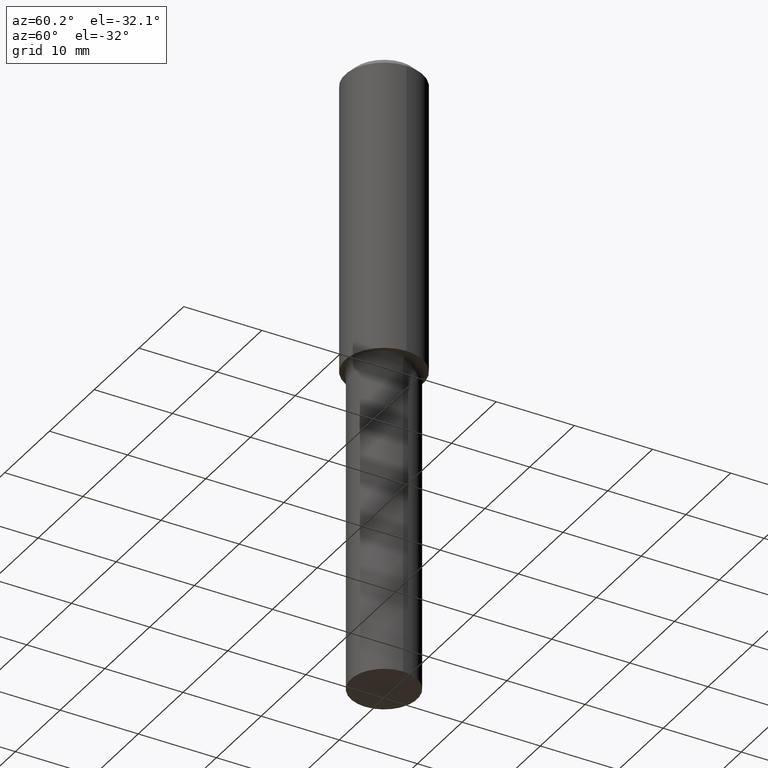
[diagram: clean part render]
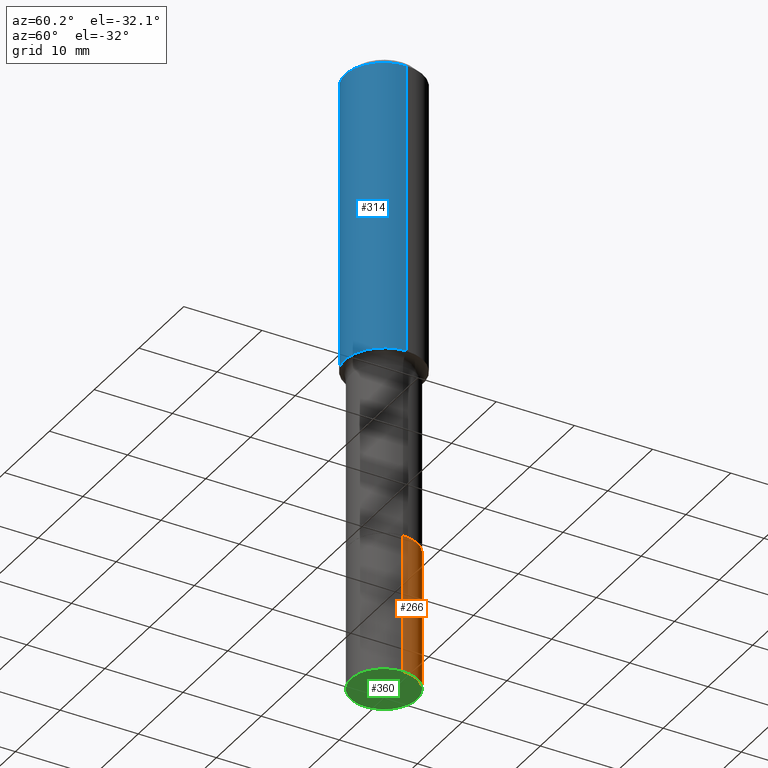
[diagram: same view with three faces highlighted in distinct colors, each labeled with its STEP entity id]
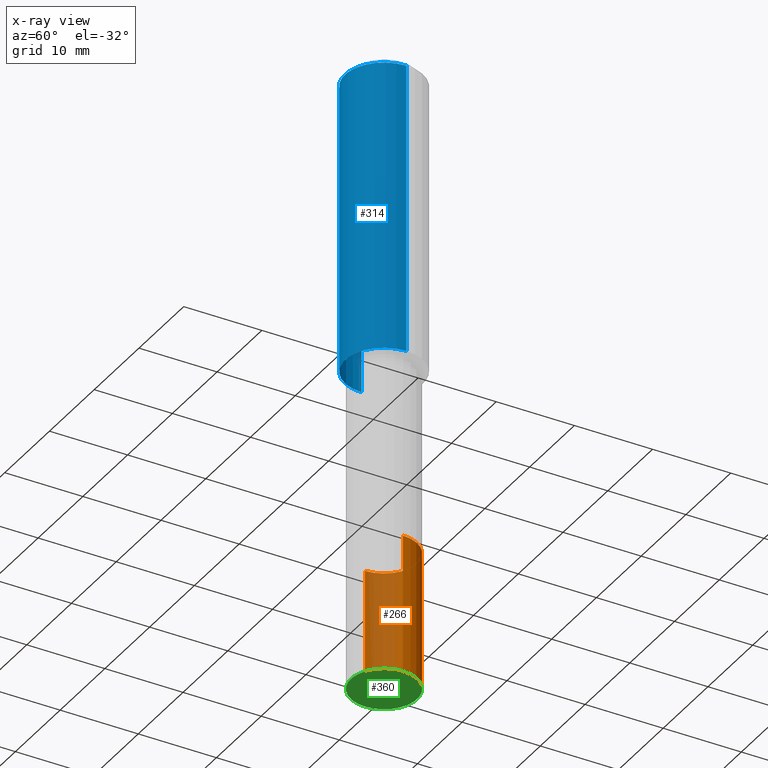
[diagram: x-ray of the same camera — body ghosted, the three highlighted faces saturated]
A machine part, auxiliary view with three faces highlighted in distinct colors.
The next image is the same camera in x-ray (body ghosted, the three faces saturated) — at least one of them is partly hidden behind the body in this view.
Their STEP definitions:

[orange] entity #266 — the highlighted cylindrical surface (partial cylindrical patch) has radius 4.2494 mm, axis along (-0, 0, 1).
#16 = AXIS2_PLACEMENT_3D ( 'NONE', #186, #55, #112 ) ;
#34 = ORIENTED_EDGE ( 'NONE', *, *, #212, .F. ) ;
#46 = ORIENTED_EDGE ( 'NONE', *, *, #477, .T. ) ;
#51 = CIRCLE ( 'NONE', #16, 0.1673000000000002263 ) ;
#54 = DIRECTION ( 'NONE',  ( -2.445468806185136597E-29, 3.491481338843145583E-15, 1.000000000000000000 ) ) ;
#55 = DIRECTION ( 'NONE',  ( -2.445468806185136597E-29, 3.491481338843145583E-15, 1.000000000000000000 ) ) ;
#66 = VECTOR ( 'NONE', #274, 39.37007874015748143 ) ;
#81 = ORIENTED_EDGE ( 'NONE', *, *, #424, .T. ) ;
#99 = CARTESIAN_POINT ( 'NONE',  ( 0.1673000000000001153, -9.717490862268239274E-15, -2.448600000000000332 ) ) ;
#112 = DIRECTION ( 'NONE',  ( 1.000000000000000000, -6.982962677686271444E-15, 0.000000000000000000 ) ) ;
#126 = CYLINDRICAL_SURFACE ( 'NONE', #488, 0.1673000000000001153 ) ;
#139 = AXIS2_PLACEMENT_3D ( 'NONE', #406, #54, #375 ) ;
#140 = VERTEX_POINT ( 'NONE', #512 ) ;
#167 = VERTEX_POINT ( 'NONE', #487 ) ;
#170 = VERTEX_POINT ( 'NONE', #264 ) ;
#177 = CARTESIAN_POINT ( 'NONE',  ( 5.987974918824925266E-29, -8.549241206291326487E-15, -2.448600000000000332 ) ) ;
#186 = CARTESIAN_POINT ( 'NONE',  ( 7.702248551960706711E-29, -1.099676962482037231E-14, -3.149600000000000399 ) ) ;
#196 = LINE ( 'NONE', #422, #224 ) ;
#211 = DIRECTION ( 'NONE',  ( -2.445468806185136597E-29, 3.491481338843145583E-15, 1.000000000000000000 ) ) ;
#212 = EDGE_CURVE ( 'NONE', #167, #307, #367, .T. ) ;
#220 = FACE_OUTER_BOUND ( 'NONE', #432, .T. ) ;
#224 = VECTOR ( 'NONE', #347, 39.37007874015748143 ) ;
#264 = CARTESIAN_POINT ( 'NONE',  ( -0.1673000000000002263, -8.584267418629199390E-15, -3.149600000000000399 ) ) ;
#266 = ADVANCED_FACE ( 'NONE', ( #220 ), #126, .T. ) ;
#274 = DIRECTION ( 'NONE',  ( -2.445468806185136877E-29, 3.491481338843145188E-15, 1.000000000000000000 ) ) ;
#307 = VERTEX_POINT ( 'NONE', #408 ) ;
#347 = DIRECTION ( 'NONE',  ( -2.445468806185136877E-29, 3.491481338843145188E-15, 1.000000000000000000 ) ) ;
#367 = CIRCLE ( 'NONE', #139, 0.1673000000000000043 ) ;
#375 = DIRECTION ( 'NONE',  ( 1.000000000000000000, -6.982962677686269866E-15, 0.000000000000000000 ) ) ;
#385 = EDGE_CURVE ( 'NONE', #140, #167, #425, .T. ) ;
#406 = CARTESIAN_POINT ( 'NONE',  ( 5.987974918824925266E-29, -8.549241206291326487E-15, -2.448600000000000332 ) ) ;
#408 = CARTESIAN_POINT ( 'NONE',  ( -0.1673000000000000043, -8.584267418629200968E-15, -2.448600000000000332 ) ) ;
#422 = CARTESIAN_POINT ( 'NONE',  ( -0.1673000000000001153, -7.360503209364678846E-15, -2.448600000000000332 ) ) ;
#424 = EDGE_CURVE ( 'NONE', #170, #307, #196, .T. ) ;
#425 = LINE ( 'NONE', #99, #66 ) ;
#432 = EDGE_LOOP ( 'NONE', ( #46, #81, #34, #462 ) ) ;
#462 = ORIENTED_EDGE ( 'NONE', *, *, #385, .F. ) ;
#477 = EDGE_CURVE ( 'NONE', #140, #170, #51, .T. ) ;
#487 = CARTESIAN_POINT ( 'NONE',  ( 0.1673000000000000043, -9.717490862268239274E-15, -2.448600000000000332 ) ) ;
#488 = AXIS2_PLACEMENT_3D ( 'NONE', #177, #211, #493 ) ;
#493 = DIRECTION ( 'NONE',  ( 1.000000000000000000, -6.982962677686265133E-15, 0.000000000000000000 ) ) ;
#512 = CARTESIAN_POINT ( 'NONE',  ( 0.1673000000000002263, -1.216501928079728667E-14, -3.149600000000000399 ) ) ;

[blue] entity #314 — the highlighted cylindrical surface (partial cylindrical patch) has radius 5 mm, axis along (-0, 0, 1).
#7 = VERTEX_POINT ( 'NONE', #44 ) ;
#17 = CYLINDRICAL_SURFACE ( 'NONE', #430, 0.1968500000000001082 ) ;
#23 = EDGE_LOOP ( 'NONE', ( #151, #237, #504, #218 ) ) ;
#24 = AXIS2_PLACEMENT_3D ( 'NONE', #334, #295, #489 ) ;
#44 = CARTESIAN_POINT ( 'NONE',  ( 0.1968500000000000250, -1.512055823412797189E-15, -0.03937000000000025896 ) ) ;
#93 = CARTESIAN_POINT ( 'NONE',  ( 0.1968500000000001082, -1.374596203102542397E-15, 9.598753983154305062E-30 ) ) ;
#94 = DIRECTION ( 'NONE',  ( 1.000000000000000000, -6.982962677686265922E-15, 0.000000000000000000 ) ) ;
#101 = FACE_OUTER_BOUND ( 'NONE', #23, .T. ) ;
#146 = DIRECTION ( 'NONE',  ( -2.445468806185136597E-29, 3.491481338843145583E-15, 1.000000000000000000 ) ) ;
#151 = ORIENTED_EDGE ( 'NONE', *, *, #494, .F. ) ;
#157 = LINE ( 'NONE', #440, #326 ) ;
#169 = EDGE_CURVE ( 'NONE', #384, #230, #261, .T. ) ;
#183 = CIRCLE ( 'NONE', #438, 0.1968500000000000250 ) ;
#199 = DIRECTION ( 'NONE',  ( -2.445468806185136877E-29, 3.491481338843145188E-15, 1.000000000000000000 ) ) ;
#206 = EDGE_CURVE ( 'NONE', #230, #7, #296, .T. ) ;
#218 = ORIENTED_EDGE ( 'NONE', *, *, #442, .F. ) ;
#225 = DIRECTION ( 'NONE',  ( -2.445468806185136597E-29, 3.491481338843145583E-15, 1.000000000000000000 ) ) ;
#230 = VERTEX_POINT ( 'NONE', #366 ) ;
#237 = ORIENTED_EDGE ( 'NONE', *, *, #169, .T. ) ;
#261 = CIRCLE ( 'NONE', #24, 0.1968500000000001915 ) ;
#295 = DIRECTION ( 'NONE',  ( -2.445468806185136597E-29, 3.491481338843145583E-15, 1.000000000000000000 ) ) ;
#296 = LINE ( 'NONE', #93, #303 ) ;
#303 = VECTOR ( 'NONE', #457, 39.37007874015748143 ) ;
#314 = ADVANCED_FACE ( 'NONE', ( #101 ), #17, .T. ) ;
#326 = VECTOR ( 'NONE', #199, 39.37007874015748143 ) ;
#334 = CARTESIAN_POINT ( 'NONE',  ( 3.696078292805706641E-29, -5.277020239880085119E-15, -1.511398666569575111 ) ) ;
#338 = DIRECTION ( 'NONE',  ( 1.000000000000000000, -6.982962677686266711E-15, 4.876176775795935793E-29 ) ) ;
#343 = CARTESIAN_POINT ( 'NONE',  ( 0.000000000000000000, 0.000000000000000000, 0.000000000000000000 ) ) ;
#366 = CARTESIAN_POINT ( 'NONE',  ( 0.1968500000000001915, -6.651616442982627516E-15, -1.511398666569575111 ) ) ;
#384 = VERTEX_POINT ( 'NONE', #470 ) ;
#430 = AXIS2_PLACEMENT_3D ( 'NONE', #343, #225, #338 ) ;
#438 = AXIS2_PLACEMENT_3D ( 'NONE', #501, #146, #94 ) ;
#440 = CARTESIAN_POINT ( 'NONE',  ( -0.1968500000000001082, 1.398703375343757985E-15, -9.682923725166787881E-30 ) ) ;
#442 = EDGE_CURVE ( 'NONE', #500, #7, #183, .T. ) ;
#457 = DIRECTION ( 'NONE',  ( -2.445468806185136877E-29, 3.491481338843145188E-15, 1.000000000000000000 ) ) ;
#470 = CARTESIAN_POINT ( 'NONE',  ( -0.1968500000000001915, -3.878316864536326542E-15, -1.511398666569575111 ) ) ;
#489 = DIRECTION ( 'NONE',  ( 1.000000000000000000, -6.982962677686266711E-15, 0.000000000000000000 ) ) ;
#494 = EDGE_CURVE ( 'NONE', #384, #500, #157, .T. ) ;
#500 = VERTEX_POINT ( 'NONE', #511 ) ;
#501 = CARTESIAN_POINT ( 'NONE',  ( 9.627810689950945397E-31, -1.374596203102555315E-16, -0.03937000000000025896 ) ) ;
#504 = ORIENTED_EDGE ( 'NONE', *, *, #206, .T. ) ;
#511 = CARTESIAN_POINT ( 'NONE',  ( -0.1968500000000000250, -1.308536554751411971E-15, -0.03937000000000025896 ) ) ;

[green] entity #360 — the highlighted planar face has unit normal (0, -0, -1).
#16 = AXIS2_PLACEMENT_3D ( 'NONE', #186, #55, #112 ) ;
#25 = FACE_OUTER_BOUND ( 'NONE', #117, .T. ) ;
#31 = DIRECTION ( 'NONE',  ( 1.000000000000000000, -6.982962677686271444E-15, 0.000000000000000000 ) ) ;
#36 = AXIS2_PLACEMENT_3D ( 'NONE', #188, #497, #229 ) ;
#51 = CIRCLE ( 'NONE', #16, 0.1673000000000002263 ) ;
#55 = DIRECTION ( 'NONE',  ( -2.445468806185136597E-29, 3.491481338843145583E-15, 1.000000000000000000 ) ) ;
#112 = DIRECTION ( 'NONE',  ( 1.000000000000000000, -6.982962677686271444E-15, 0.000000000000000000 ) ) ;
#117 = EDGE_LOOP ( 'NONE', ( #392, #389 ) ) ;
#140 = VERTEX_POINT ( 'NONE', #512 ) ;
#165 = CIRCLE ( 'NONE', #503, 0.1673000000000002263 ) ;
#170 = VERTEX_POINT ( 'NONE', #264 ) ;
#186 = CARTESIAN_POINT ( 'NONE',  ( 7.702248551960706711E-29, -1.099676962482037231E-14, -3.149600000000000399 ) ) ;
#188 = CARTESIAN_POINT ( 'NONE',  ( 7.702248551960706711E-29, -1.099676962482037231E-14, -3.149600000000000399 ) ) ;
#193 = PLANE ( 'NONE',  #36 ) ;
#229 = DIRECTION ( 'NONE',  ( -1.000000000000000000, 6.982962677686265922E-15, -4.876176775795935793E-29 ) ) ;
#247 = CARTESIAN_POINT ( 'NONE',  ( 7.702248551960706711E-29, -1.099676962482037231E-14, -3.149600000000000399 ) ) ;
#264 = CARTESIAN_POINT ( 'NONE',  ( -0.1673000000000002263, -8.584267418629199390E-15, -3.149600000000000399 ) ) ;
#360 = ADVANCED_FACE ( 'NONE', ( #25 ), #193, .T. ) ;
#389 = ORIENTED_EDGE ( 'NONE', *, *, #510, .F. ) ;
#392 = ORIENTED_EDGE ( 'NONE', *, *, #477, .F. ) ;
#444 = DIRECTION ( 'NONE',  ( -2.445468806185136597E-29, 3.491481338843145583E-15, 1.000000000000000000 ) ) ;
#477 = EDGE_CURVE ( 'NONE', #140, #170, #51, .T. ) ;
#497 = DIRECTION ( 'NONE',  ( 2.438088387897960049E-29, -3.491481338843145188E-15, -1.000000000000000000 ) ) ;
#503 = AXIS2_PLACEMENT_3D ( 'NONE', #247, #444, #31 ) ;
#510 = EDGE_CURVE ( 'NONE', #170, #140, #165, .T. ) ;
#512 = CARTESIAN_POINT ( 'NONE',  ( 0.1673000000000002263, -1.216501928079728667E-14, -3.149600000000000399 ) ) ;